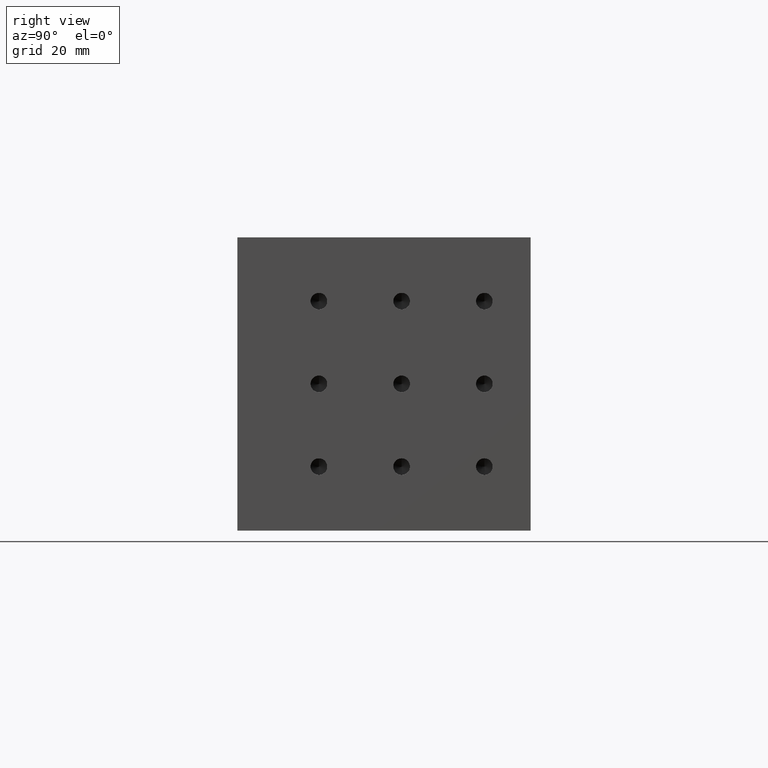
[diagram: clean part render]
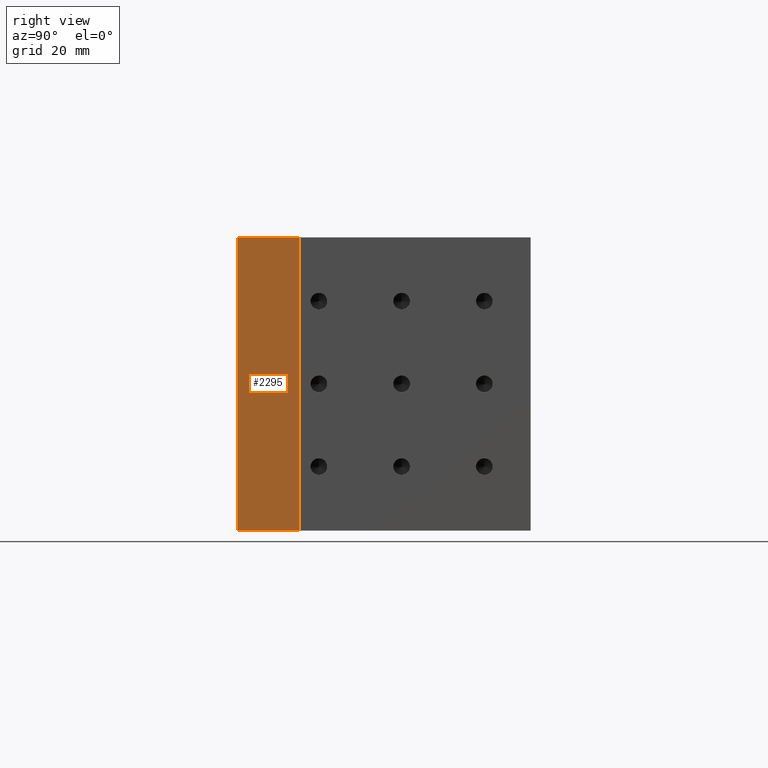
[diagram: same view with one face highlighted and labeled with its STEP entity id]
A machine part, right view. The second image highlights one B-rep face of the part: STEP entity #2295.
In plain terms, the highlighted planar face has unit normal (1, 0, -0).
Its self-contained STEP definition (entity closure, byte-faithful):
#68 = LINE ( 'NONE', #2564, #1041 ) ;
#358 = CARTESIAN_POINT ( 'NONE',  ( 174.3969387244427500, 104.2146020396520600, 143.8158939252802800 ) ) ;
#671 = ORIENTED_EDGE ( 'NONE', *, *, #970, .F. ) ;
#853 = EDGE_LOOP ( 'NONE', ( #3620, #671, #1158, #3263 ) ) ;
#856 = VECTOR ( 'NONE', #3170, 1000.000000000000000 ) ;
#964 = CARTESIAN_POINT ( 'NONE',  ( 174.3969387244427500, 85.21460203965206400, 188.8158939252802500 ) ) ;
#970 = EDGE_CURVE ( 'NONE', #4945, #1992, #68, .T. ) ;
#1041 = VECTOR ( 'NONE', #4291, 1000.000000000000000 ) ;
#1158 = ORIENTED_EDGE ( 'NONE', *, *, #1367, .T. ) ;
#1206 = CARTESIAN_POINT ( 'NONE',  ( 174.3969387244427500, 104.2146020396520600, 143.8158939252802800 ) ) ;
#1367 = EDGE_CURVE ( 'NONE', #4945, #3817, #4108, .T. ) ;
#1622 = VECTOR ( 'NONE', #4932, 1000.000000000000000 ) ;
#1763 = CARTESIAN_POINT ( 'NONE',  ( 174.3969387244427500, 85.21460203965206400, 98.81589392528026400 ) ) ;
#1943 = LINE ( 'NONE', #3592, #856 ) ;
#1992 = VERTEX_POINT ( 'NONE', #1763 ) ;
#2295 = ADVANCED_FACE ( 'NONE', ( #4525 ), #3245, .T. ) ;
#2442 = DIRECTION ( 'NONE',  ( 1.000000000000000000, 0.0000000000000000000, -1.224606353822377500E-016 ) ) ;
#2564 = CARTESIAN_POINT ( 'NONE',  ( 174.3969387244427500, 104.2146020396520600, 98.81589392528026400 ) ) ;
#2663 = VECTOR ( 'NONE', #5165, 1000.000000000000000 ) ;
#3111 = CARTESIAN_POINT ( 'NONE',  ( 174.3969387244427500, 104.2146020396520600, 188.8158939252802500 ) ) ;
#3147 = VERTEX_POINT ( 'NONE', #964 ) ;
#3170 = DIRECTION ( 'NONE',  ( 1.224606353822377500E-016, 0.0000000000000000000, 1.000000000000000000 ) ) ;
#3245 = PLANE ( 'NONE',  #5158 ) ;
#3263 = ORIENTED_EDGE ( 'NONE', *, *, #3749, .T. ) ;
#3319 = DIRECTION ( 'NONE',  ( -1.224606353822377500E-016, 0.0000000000000000000, -1.000000000000000000 ) ) ;
#3492 = CARTESIAN_POINT ( 'NONE',  ( 174.3969387244427500, 104.2146020396520600, 188.8158939252802500 ) ) ;
#3592 = CARTESIAN_POINT ( 'NONE',  ( 174.3969387244427500, 85.21460203965206400, 143.8158939252802800 ) ) ;
#3620 = ORIENTED_EDGE ( 'NONE', *, *, #4970, .F. ) ;
#3749 = EDGE_CURVE ( 'NONE', #3817, #3147, #4750, .T. ) ;
#3817 = VERTEX_POINT ( 'NONE', #3111 ) ;
#3971 = CARTESIAN_POINT ( 'NONE',  ( 174.3969387244427500, 104.2146020396520600, 98.81589392528026400 ) ) ;
#4108 = LINE ( 'NONE', #358, #1622 ) ;
#4291 = DIRECTION ( 'NONE',  ( -0.0000000000000000000, -1.000000000000000000, -0.0000000000000000000 ) ) ;
#4525 = FACE_OUTER_BOUND ( 'NONE', #853, .T. ) ;
#4750 = LINE ( 'NONE', #3492, #2663 ) ;
#4932 = DIRECTION ( 'NONE',  ( 1.224606353822377500E-016, 0.0000000000000000000, 1.000000000000000000 ) ) ;
#4945 = VERTEX_POINT ( 'NONE', #3971 ) ;
#4970 = EDGE_CURVE ( 'NONE', #1992, #3147, #1943, .T. ) ;
#5158 = AXIS2_PLACEMENT_3D ( 'NONE', #1206, #2442, #3319 ) ;
#5165 = DIRECTION ( 'NONE',  ( -0.0000000000000000000, -1.000000000000000000, -0.0000000000000000000 ) ) ;